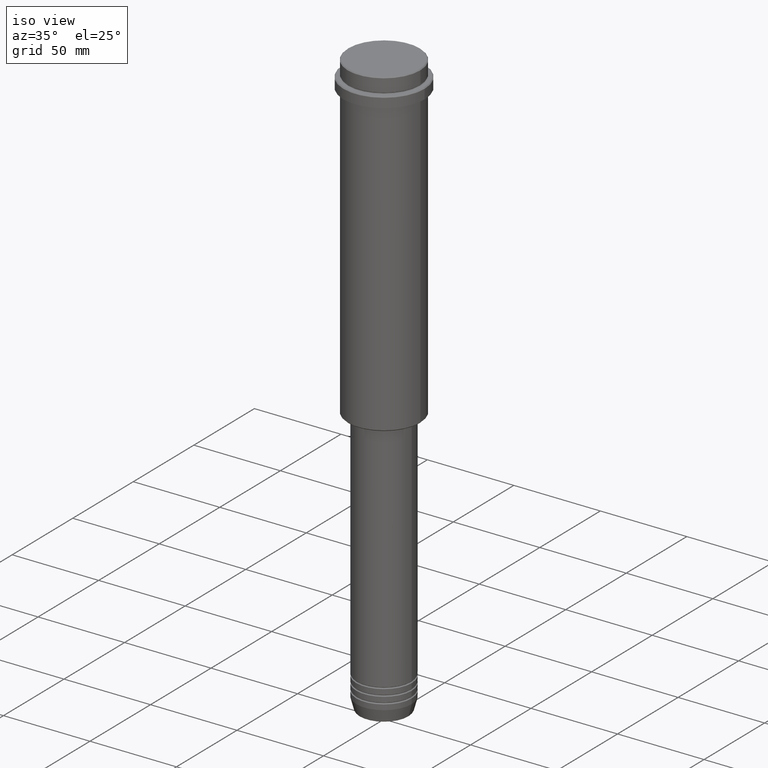
[diagram: clean part render]
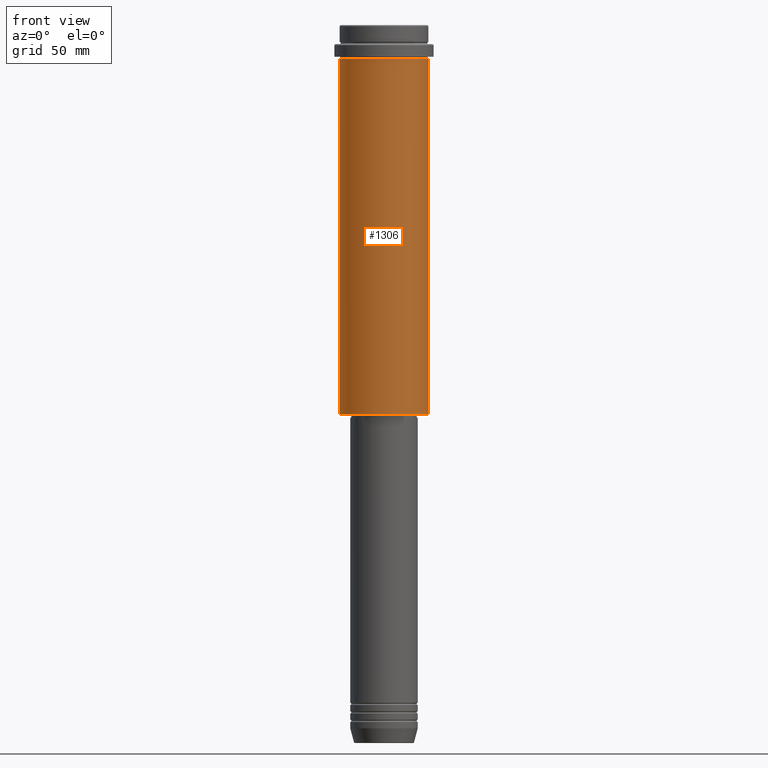
[diagram: tour spotlight — one face highlighted and labeled with its STEP entity id]
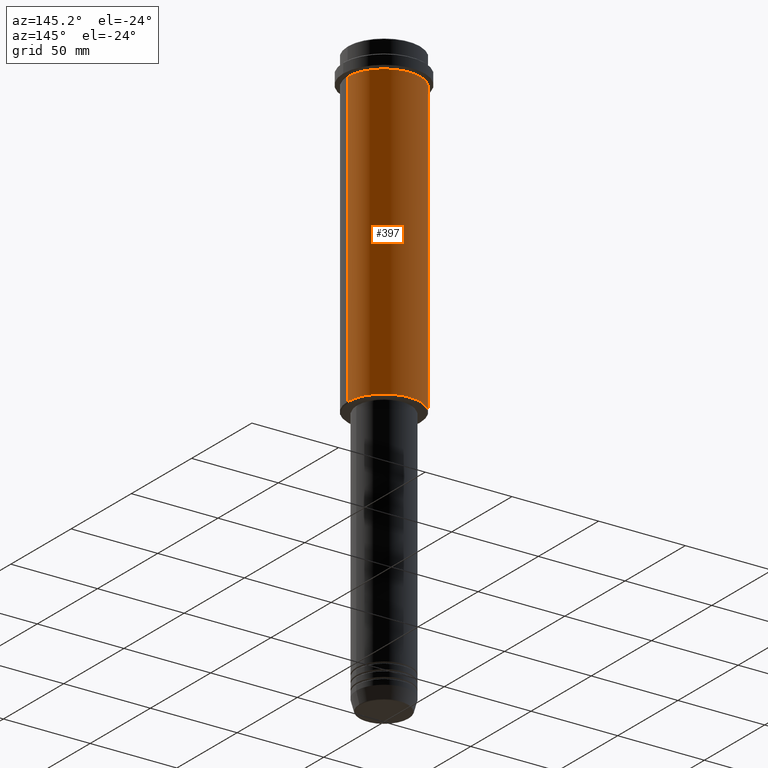
[diagram: tour spotlight — one face highlighted and labeled with its STEP entity id]
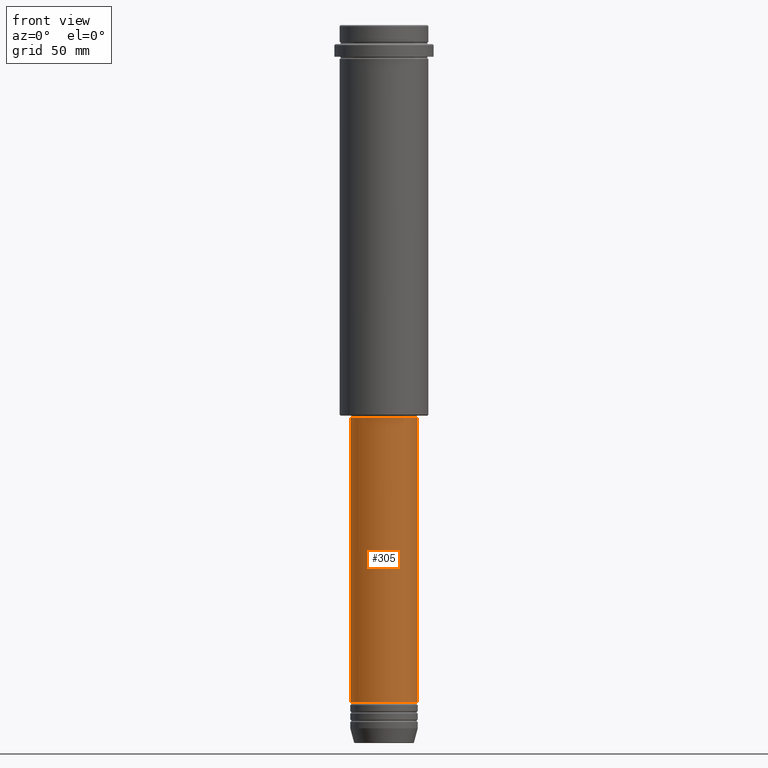
[diagram: tour spotlight — one face highlighted and labeled with its STEP entity id]
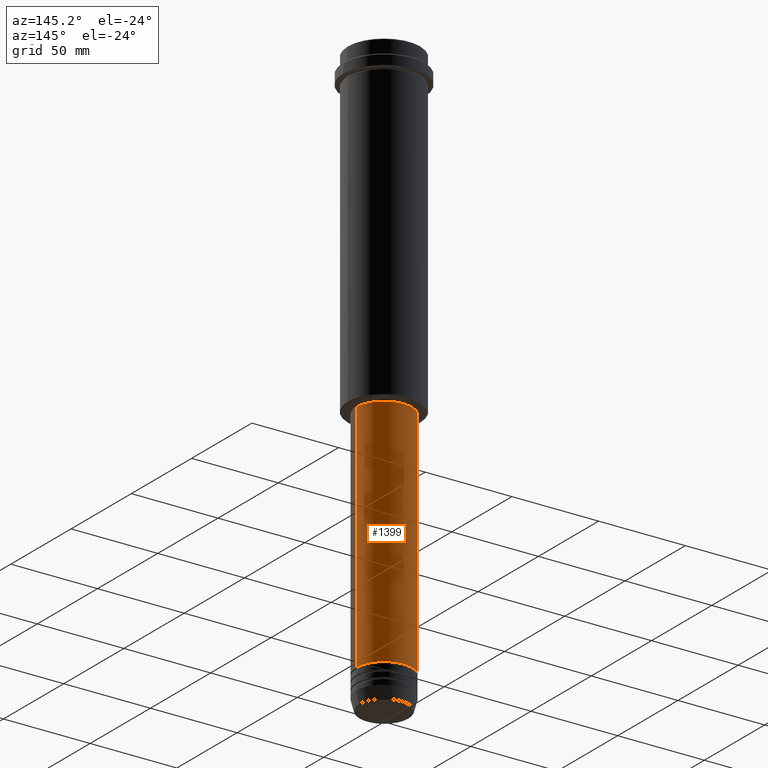
[diagram: tour spotlight — one face highlighted and labeled with its STEP entity id]
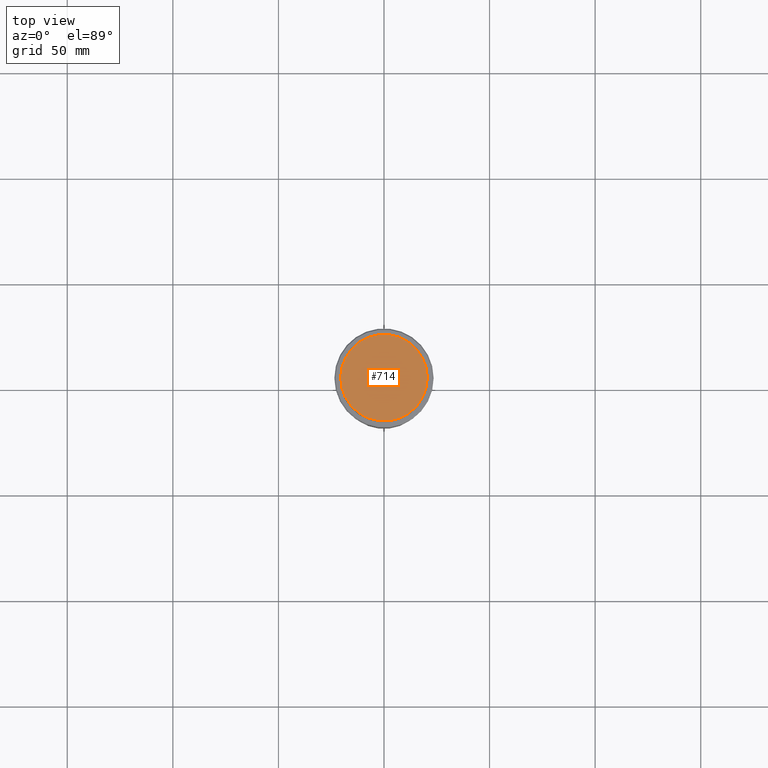
[diagram: tour spotlight — one face highlighted and labeled with its STEP entity id]
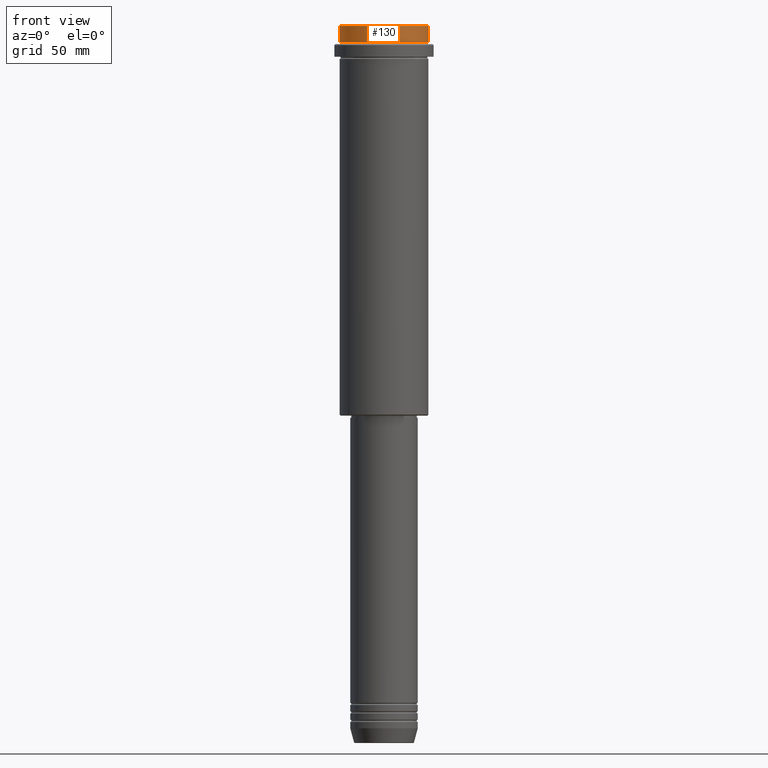
[diagram: tour spotlight — one face highlighted and labeled with its STEP entity id]
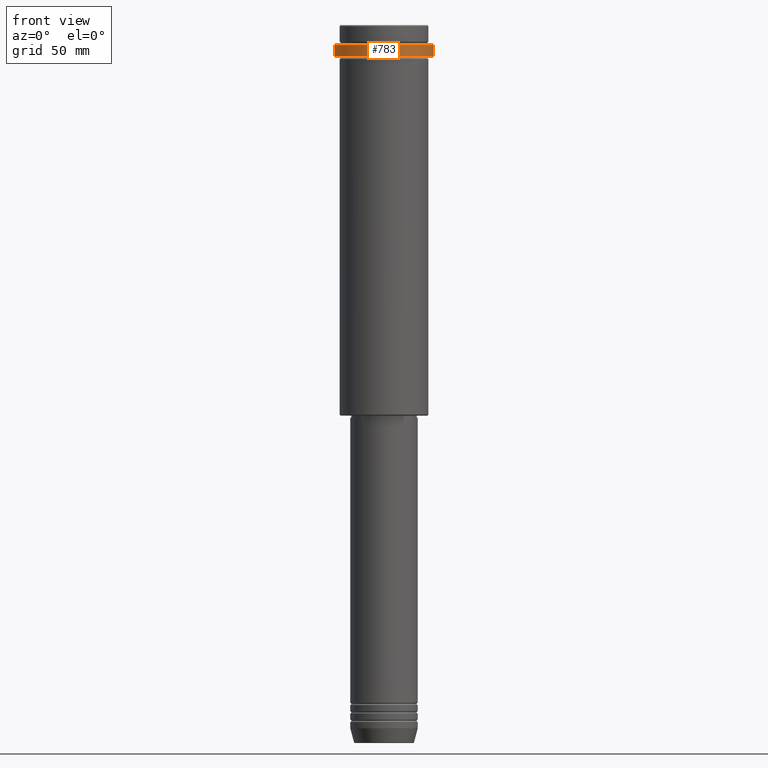
[diagram: tour spotlight — one face highlighted and labeled with its STEP entity id]
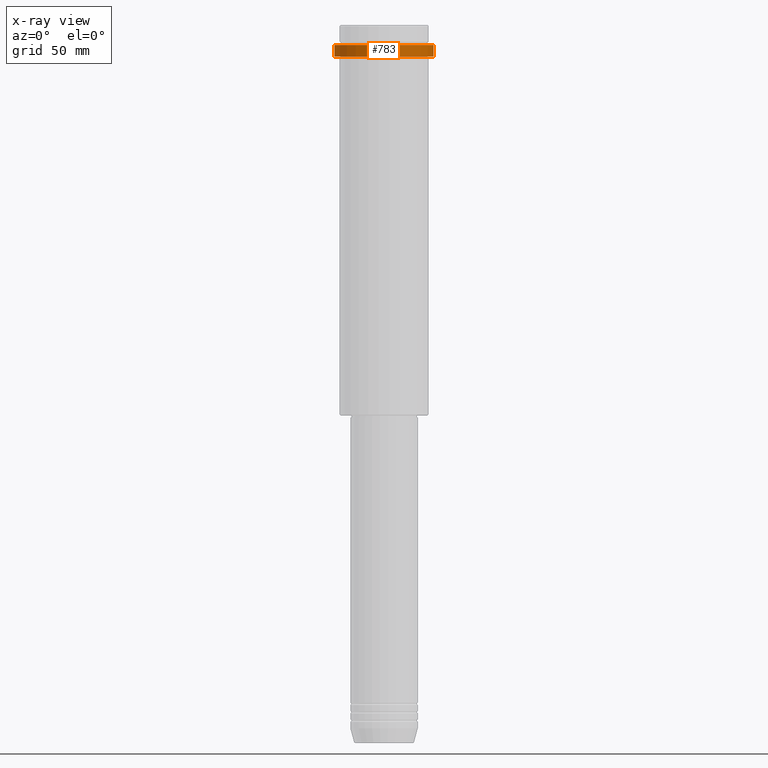
[diagram: x-ray of the same camera — body ghosted, this tour face saturated]
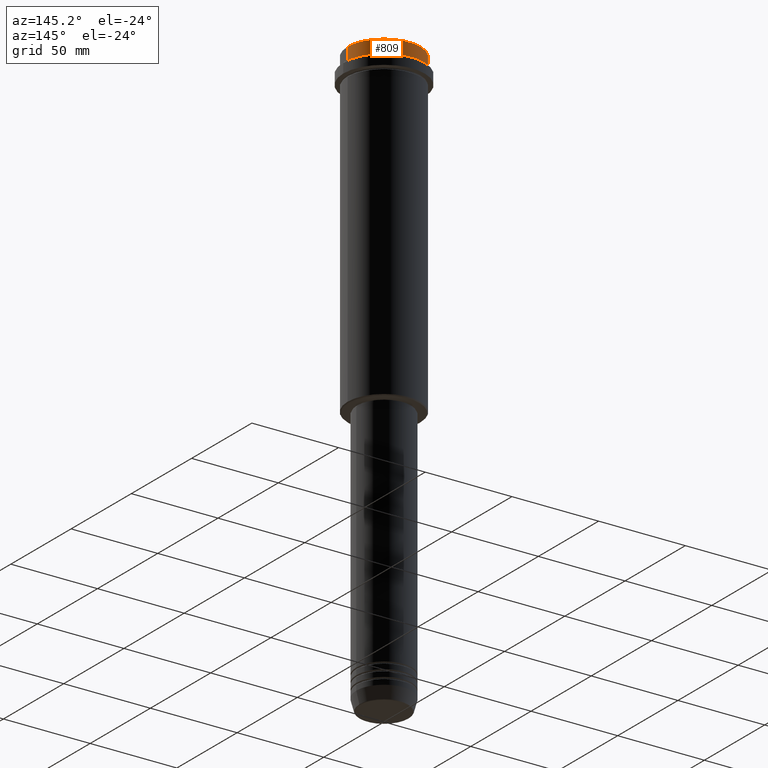
[diagram: tour spotlight — one face highlighted and labeled with its STEP entity id]
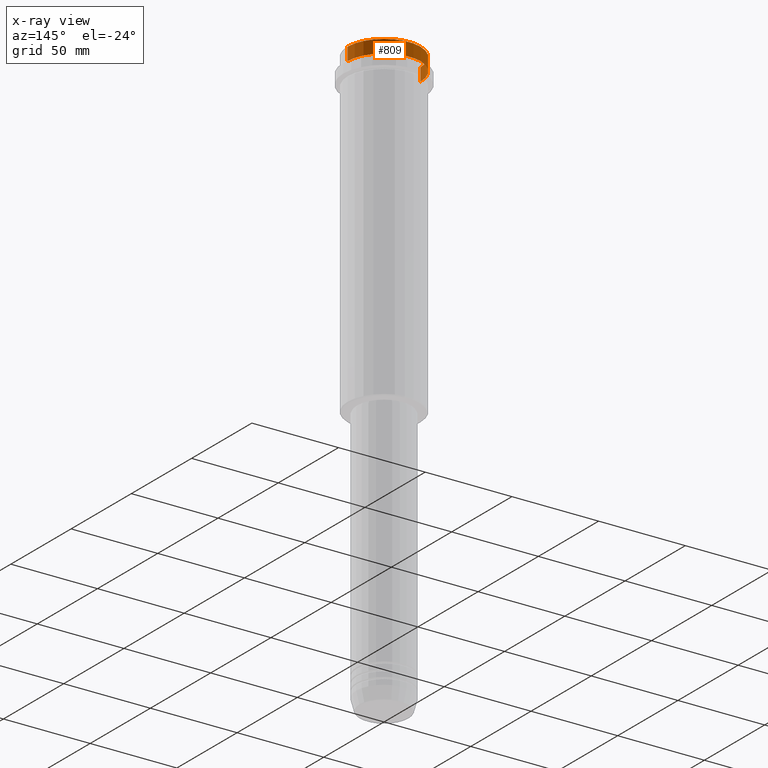
[diagram: x-ray of the same camera — body ghosted, this tour face saturated]
A machine part: a face-by-face anatomy tour. The part has 52 B-rep faces; the first image is the clean iso view, then the 8 largest visible faces are spotlighted one at a time (largest first), each with its STEP entity span.

Face 1 — front view, entity #1306. In plain terms, the highlighted cylindrical surface (partial cylindrical patch) has radius 21 mm, axis along (-0, -0, 1).
Definition (entity closure, byte-faithful):
#24 = FACE_OUTER_BOUND ( 'NONE', #1365, .T. ) ;
#34 = DIRECTION ( 'NONE',  ( 1.000000000000000000, 0.000000000000000000, 0.000000000000000000 ) ) ;
#41 = CARTESIAN_POINT ( 'NONE',  ( 20.99999999999999645, 0.000000000000000000, -16.00000000000000355 ) ) ;
#58 = VERTEX_POINT ( 'NONE', #1004 ) ;
#90 = DIRECTION ( 'NONE',  ( -0.000000000000000000, -0.000000000000000000, 1.000000000000000000 ) ) ;
#102 = CARTESIAN_POINT ( 'NONE',  ( 20.99999999999999645, 0.000000000000000000, 0.000000000000000000 ) ) ;
#106 = CARTESIAN_POINT ( 'NONE',  ( 0.000000000000000000, 0.000000000000000000, -184.5000000000001137 ) ) ;
#204 = DIRECTION ( 'NONE',  ( -0.000000000000000000, -0.000000000000000000, 1.000000000000000000 ) ) ;
#272 = DIRECTION ( 'NONE',  ( -0.000000000000000000, -0.000000000000000000, 1.000000000000000000 ) ) ;
#280 = ORIENTED_EDGE ( 'NONE', *, *, #672, .T. ) ;
#298 = LINE ( 'NONE', #500, #696 ) ;
#370 = VERTEX_POINT ( 'NONE', #1119 ) ;
#500 = CARTESIAN_POINT ( 'NONE',  ( -20.99999999999999645, 2.571758278209441267E-15, 0.000000000000000000 ) ) ;
#508 = EDGE_CURVE ( 'NONE', #58, #914, #298, .T. ) ;
#524 = ORIENTED_EDGE ( 'NONE', *, *, #508, .F. ) ;
#586 = DIRECTION ( 'NONE',  ( -0.000000000000000000, -0.000000000000000000, 1.000000000000000000 ) ) ;
#597 = CYLINDRICAL_SURFACE ( 'NONE', #1228, 20.99999999999999645 ) ;
#672 = EDGE_CURVE ( 'NONE', #370, #1171, #869, .T. ) ;
#676 = CIRCLE ( 'NONE', #1178, 20.99999999999999645 ) ;
#696 = VECTOR ( 'NONE', #272, 1000.000000000000000 ) ;
#708 = EDGE_CURVE ( 'NONE', #58, #370, #676, .T. ) ;
#715 = CARTESIAN_POINT ( 'NONE',  ( -20.99999999999999645, 2.571758278209441267E-15, -16.00000000000000355 ) ) ;
#790 = VECTOR ( 'NONE', #204, 1000.000000000000000 ) ;
#869 = LINE ( 'NONE', #102, #790 ) ;
#888 = AXIS2_PLACEMENT_3D ( 'NONE', #1043, #90, #1175 ) ;
#889 = ORIENTED_EDGE ( 'NONE', *, *, #708, .T. ) ;
#914 = VERTEX_POINT ( 'NONE', #715 ) ;
#953 = EDGE_CURVE ( 'NONE', #914, #1171, #1090, .T. ) ;
#986 = ORIENTED_EDGE ( 'NONE', *, *, #953, .F. ) ;
#1004 = CARTESIAN_POINT ( 'NONE',  ( -20.99999999999999645, 2.571758278209441267E-15, -184.5000000000001137 ) ) ;
#1008 = CARTESIAN_POINT ( 'NONE',  ( 0.000000000000000000, 0.000000000000000000, 0.000000000000000000 ) ) ;
#1043 = CARTESIAN_POINT ( 'NONE',  ( 0.000000000000000000, 0.000000000000000000, -16.00000000000000355 ) ) ;
#1090 = CIRCLE ( 'NONE', #888, 20.99999999999999645 ) ;
#1119 = CARTESIAN_POINT ( 'NONE',  ( 20.99999999999999645, 0.000000000000000000, -184.5000000000001137 ) ) ;
#1171 = VERTEX_POINT ( 'NONE', #41 ) ;
#1175 = DIRECTION ( 'NONE',  ( 1.000000000000000000, 0.000000000000000000, 0.000000000000000000 ) ) ;
#1178 = AXIS2_PLACEMENT_3D ( 'NONE', #106, #1189, #1415 ) ;
#1189 = DIRECTION ( 'NONE',  ( -0.000000000000000000, -0.000000000000000000, 1.000000000000000000 ) ) ;
#1228 = AXIS2_PLACEMENT_3D ( 'NONE', #1008, #586, #34 ) ;
#1306 = ADVANCED_FACE ( 'NONE', ( #24 ), #597, .T. ) ;
#1365 = EDGE_LOOP ( 'NONE', ( #524, #889, #280, #986 ) ) ;
#1415 = DIRECTION ( 'NONE',  ( -1.000000000000000000, 0.000000000000000000, 0.000000000000000000 ) ) ;

Face 2 — auxiliary view, entity #397. In plain terms, the highlighted cylindrical surface (partial cylindrical patch) has radius 21 mm, axis along (-0, -0, 1).
Definition (entity closure, byte-faithful):
#28 = ORIENTED_EDGE ( 'NONE', *, *, #1142, .T. ) ;
#41 = CARTESIAN_POINT ( 'NONE',  ( 20.99999999999999645, 0.000000000000000000, -16.00000000000000355 ) ) ;
#58 = VERTEX_POINT ( 'NONE', #1004 ) ;
#102 = CARTESIAN_POINT ( 'NONE',  ( 20.99999999999999645, 0.000000000000000000, 0.000000000000000000 ) ) ;
#108 = EDGE_LOOP ( 'NONE', ( #28, #681, #601, #358 ) ) ;
#177 = DIRECTION ( 'NONE',  ( -0.000000000000000000, -0.000000000000000000, 1.000000000000000000 ) ) ;
#204 = DIRECTION ( 'NONE',  ( -0.000000000000000000, -0.000000000000000000, 1.000000000000000000 ) ) ;
#272 = DIRECTION ( 'NONE',  ( -0.000000000000000000, -0.000000000000000000, 1.000000000000000000 ) ) ;
#298 = LINE ( 'NONE', #500, #696 ) ;
#358 = ORIENTED_EDGE ( 'NONE', *, *, #672, .F. ) ;
#370 = VERTEX_POINT ( 'NONE', #1119 ) ;
#375 = DIRECTION ( 'NONE',  ( 1.000000000000000000, 0.000000000000000000, 0.000000000000000000 ) ) ;
#397 = ADVANCED_FACE ( 'NONE', ( #490 ), #484, .T. ) ;
#411 = EDGE_CURVE ( 'NONE', #1171, #914, #1159, .T. ) ;
#454 = DIRECTION ( 'NONE',  ( -1.000000000000000000, 0.000000000000000000, 0.000000000000000000 ) ) ;
#484 = CYLINDRICAL_SURFACE ( 'NONE', #1223, 20.99999999999999645 ) ;
#490 = FACE_OUTER_BOUND ( 'NONE', #108, .T. ) ;
#500 = CARTESIAN_POINT ( 'NONE',  ( -20.99999999999999645, 2.571758278209441267E-15, 0.000000000000000000 ) ) ;
#508 = EDGE_CURVE ( 'NONE', #58, #914, #298, .T. ) ;
#573 = AXIS2_PLACEMENT_3D ( 'NONE', #1209, #962, #454 ) ;
#601 = ORIENTED_EDGE ( 'NONE', *, *, #411, .F. ) ;
#672 = EDGE_CURVE ( 'NONE', #370, #1171, #869, .T. ) ;
#681 = ORIENTED_EDGE ( 'NONE', *, *, #508, .T. ) ;
#696 = VECTOR ( 'NONE', #272, 1000.000000000000000 ) ;
#715 = CARTESIAN_POINT ( 'NONE',  ( -20.99999999999999645, 2.571758278209441267E-15, -16.00000000000000355 ) ) ;
#717 = AXIS2_PLACEMENT_3D ( 'NONE', #1106, #1019, #375 ) ;
#790 = VECTOR ( 'NONE', #204, 1000.000000000000000 ) ;
#851 = DIRECTION ( 'NONE',  ( 1.000000000000000000, 0.000000000000000000, 0.000000000000000000 ) ) ;
#869 = LINE ( 'NONE', #102, #790 ) ;
#914 = VERTEX_POINT ( 'NONE', #715 ) ;
#962 = DIRECTION ( 'NONE',  ( -0.000000000000000000, -0.000000000000000000, 1.000000000000000000 ) ) ;
#1004 = CARTESIAN_POINT ( 'NONE',  ( -20.99999999999999645, 2.571758278209441267E-15, -184.5000000000001137 ) ) ;
#1019 = DIRECTION ( 'NONE',  ( -0.000000000000000000, -0.000000000000000000, 1.000000000000000000 ) ) ;
#1106 = CARTESIAN_POINT ( 'NONE',  ( 0.000000000000000000, 0.000000000000000000, -16.00000000000000355 ) ) ;
#1119 = CARTESIAN_POINT ( 'NONE',  ( 20.99999999999999645, 0.000000000000000000, -184.5000000000001137 ) ) ;
#1142 = EDGE_CURVE ( 'NONE', #370, #58, #1181, .T. ) ;
#1159 = CIRCLE ( 'NONE', #717, 20.99999999999999645 ) ;
#1171 = VERTEX_POINT ( 'NONE', #41 ) ;
#1181 = CIRCLE ( 'NONE', #573, 20.99999999999999645 ) ;
#1209 = CARTESIAN_POINT ( 'NONE',  ( 0.000000000000000000, 0.000000000000000000, -184.5000000000001137 ) ) ;
#1223 = AXIS2_PLACEMENT_3D ( 'NONE', #1252, #177, #851 ) ;
#1252 = CARTESIAN_POINT ( 'NONE',  ( 0.000000000000000000, 0.000000000000000000, 0.000000000000000000 ) ) ;

Face 3 — front view, entity #305. In plain terms, the highlighted cylindrical surface (edge-blend (fillet) strip) has radius 16 mm, axis along (-0, -0, 1).
Definition (entity closure, byte-faithful):
#2 = CARTESIAN_POINT ( 'NONE',  ( 16.00000000000000000, 0.000000000000000000, -320.9999999999998863 ) ) ;
#12 = DIRECTION ( 'NONE',  ( 1.000000000000000000, 0.000000000000000000, 0.000000000000000000 ) ) ;
#20 = EDGE_CURVE ( 'NONE', #23, #1063, #537, .T. ) ;
#23 = VERTEX_POINT ( 'NONE', #2 ) ;
#43 = CARTESIAN_POINT ( 'NONE',  ( -16.00000000000000000, 1.959434878635765131E-15, -320.9999999999998863 ) ) ;
#79 = EDGE_CURVE ( 'NONE', #518, #1063, #472, .T. ) ;
#141 = FACE_OUTER_BOUND ( 'NONE', #374, .T. ) ;
#212 = CARTESIAN_POINT ( 'NONE',  ( 16.00000000000000355, 0.000000000000000000, -185.9999999999999432 ) ) ;
#234 = DIRECTION ( 'NONE',  ( -0.000000000000000000, -0.000000000000000000, 1.000000000000000000 ) ) ;
#247 = AXIS2_PLACEMENT_3D ( 'NONE', #465, #1343, #367 ) ;
#305 = ADVANCED_FACE ( 'NONE', ( #141 ), #669, .T. ) ;
#367 = DIRECTION ( 'NONE',  ( 1.000000000000000000, 0.000000000000000000, 0.000000000000000000 ) ) ;
#374 = EDGE_LOOP ( 'NONE', ( #1390, #595, #736, #383 ) ) ;
#383 = ORIENTED_EDGE ( 'NONE', *, *, #79, .F. ) ;
#461 = DIRECTION ( 'NONE',  ( 1.000000000000000000, 0.000000000000000000, 0.000000000000000000 ) ) ;
#465 = CARTESIAN_POINT ( 'NONE',  ( 0.000000000000000000, 0.000000000000000000, 0.000000000000000000 ) ) ;
#472 = CIRCLE ( 'NONE', #1135, 16.00000000000000355 ) ;
#504 = CIRCLE ( 'NONE', #747, 16.00000000000000000 ) ;
#518 = VERTEX_POINT ( 'NONE', #1149 ) ;
#521 = DIRECTION ( 'NONE',  ( -0.000000000000000000, -0.000000000000000000, 1.000000000000000000 ) ) ;
#537 = LINE ( 'NONE', #977, #587 ) ;
#587 = VECTOR ( 'NONE', #646, 1000.000000000000000 ) ;
#595 = ORIENTED_EDGE ( 'NONE', *, *, #1188, .T. ) ;
#613 = CARTESIAN_POINT ( 'NONE',  ( 0.000000000000000000, 0.000000000000000000, -185.9999999999999432 ) ) ;
#646 = DIRECTION ( 'NONE',  ( -0.000000000000000000, -0.000000000000000000, 1.000000000000000000 ) ) ;
#669 = CYLINDRICAL_SURFACE ( 'NONE', #247, 16.00000000000000000 ) ;
#736 = ORIENTED_EDGE ( 'NONE', *, *, #20, .T. ) ;
#747 = AXIS2_PLACEMENT_3D ( 'NONE', #1219, #1358, #461 ) ;
#765 = LINE ( 'NONE', #1140, #792 ) ;
#792 = VECTOR ( 'NONE', #234, 1000.000000000000000 ) ;
#817 = VERTEX_POINT ( 'NONE', #43 ) ;
#867 = EDGE_CURVE ( 'NONE', #817, #518, #765, .T. ) ;
#977 = CARTESIAN_POINT ( 'NONE',  ( 16.00000000000000000, 0.000000000000000000, 0.000000000000000000 ) ) ;
#1063 = VERTEX_POINT ( 'NONE', #212 ) ;
#1135 = AXIS2_PLACEMENT_3D ( 'NONE', #613, #521, #12 ) ;
#1140 = CARTESIAN_POINT ( 'NONE',  ( -16.00000000000000000, 1.959434878635765131E-15, 0.000000000000000000 ) ) ;
#1149 = CARTESIAN_POINT ( 'NONE',  ( -16.00000000000000355, 1.959434878635765526E-15, -185.9999999999999432 ) ) ;
#1188 = EDGE_CURVE ( 'NONE', #817, #23, #504, .T. ) ;
#1219 = CARTESIAN_POINT ( 'NONE',  ( 0.000000000000000000, 0.000000000000000000, -320.9999999999998863 ) ) ;
#1343 = DIRECTION ( 'NONE',  ( -0.000000000000000000, -0.000000000000000000, 1.000000000000000000 ) ) ;
#1358 = DIRECTION ( 'NONE',  ( -0.000000000000000000, -0.000000000000000000, 1.000000000000000000 ) ) ;
#1390 = ORIENTED_EDGE ( 'NONE', *, *, #867, .F. ) ;

Face 4 — auxiliary view, entity #1399. In plain terms, the highlighted cylindrical surface (edge-blend (fillet) strip) has radius 16 mm, axis along (-0, -0, 1).
Definition (entity closure, byte-faithful):
#2 = CARTESIAN_POINT ( 'NONE',  ( 16.00000000000000000, 0.000000000000000000, -320.9999999999998863 ) ) ;
#9 = EDGE_LOOP ( 'NONE', ( #1261, #35, #880, #1357 ) ) ;
#20 = EDGE_CURVE ( 'NONE', #23, #1063, #537, .T. ) ;
#23 = VERTEX_POINT ( 'NONE', #2 ) ;
#33 = EDGE_CURVE ( 'NONE', #1063, #518, #858, .T. ) ;
#35 = ORIENTED_EDGE ( 'NONE', *, *, #867, .T. ) ;
#43 = CARTESIAN_POINT ( 'NONE',  ( -16.00000000000000000, 1.959434878635765131E-15, -320.9999999999998863 ) ) ;
#185 = DIRECTION ( 'NONE',  ( -0.000000000000000000, -0.000000000000000000, 1.000000000000000000 ) ) ;
#194 = AXIS2_PLACEMENT_3D ( 'NONE', #703, #392, #519 ) ;
#212 = CARTESIAN_POINT ( 'NONE',  ( 16.00000000000000355, 0.000000000000000000, -185.9999999999999432 ) ) ;
#234 = DIRECTION ( 'NONE',  ( -0.000000000000000000, -0.000000000000000000, 1.000000000000000000 ) ) ;
#291 = EDGE_CURVE ( 'NONE', #23, #817, #1293, .T. ) ;
#392 = DIRECTION ( 'NONE',  ( -0.000000000000000000, -0.000000000000000000, 1.000000000000000000 ) ) ;
#518 = VERTEX_POINT ( 'NONE', #1149 ) ;
#519 = DIRECTION ( 'NONE',  ( 1.000000000000000000, 0.000000000000000000, 0.000000000000000000 ) ) ;
#537 = LINE ( 'NONE', #977, #587 ) ;
#587 = VECTOR ( 'NONE', #646, 1000.000000000000000 ) ;
#646 = DIRECTION ( 'NONE',  ( -0.000000000000000000, -0.000000000000000000, 1.000000000000000000 ) ) ;
#703 = CARTESIAN_POINT ( 'NONE',  ( 0.000000000000000000, 0.000000000000000000, 0.000000000000000000 ) ) ;
#742 = AXIS2_PLACEMENT_3D ( 'NONE', #1362, #1231, #908 ) ;
#765 = LINE ( 'NONE', #1140, #792 ) ;
#792 = VECTOR ( 'NONE', #234, 1000.000000000000000 ) ;
#817 = VERTEX_POINT ( 'NONE', #43 ) ;
#818 = DIRECTION ( 'NONE',  ( 1.000000000000000000, 0.000000000000000000, 0.000000000000000000 ) ) ;
#858 = CIRCLE ( 'NONE', #947, 16.00000000000000355 ) ;
#867 = EDGE_CURVE ( 'NONE', #817, #518, #765, .T. ) ;
#880 = ORIENTED_EDGE ( 'NONE', *, *, #33, .F. ) ;
#908 = DIRECTION ( 'NONE',  ( 1.000000000000000000, 0.000000000000000000, 0.000000000000000000 ) ) ;
#947 = AXIS2_PLACEMENT_3D ( 'NONE', #1075, #185, #818 ) ;
#977 = CARTESIAN_POINT ( 'NONE',  ( 16.00000000000000000, 0.000000000000000000, 0.000000000000000000 ) ) ;
#1061 = FACE_OUTER_BOUND ( 'NONE', #9, .T. ) ;
#1063 = VERTEX_POINT ( 'NONE', #212 ) ;
#1075 = CARTESIAN_POINT ( 'NONE',  ( 0.000000000000000000, 0.000000000000000000, -185.9999999999999432 ) ) ;
#1140 = CARTESIAN_POINT ( 'NONE',  ( -16.00000000000000000, 1.959434878635765131E-15, 0.000000000000000000 ) ) ;
#1149 = CARTESIAN_POINT ( 'NONE',  ( -16.00000000000000355, 1.959434878635765526E-15, -185.9999999999999432 ) ) ;
#1231 = DIRECTION ( 'NONE',  ( -0.000000000000000000, -0.000000000000000000, 1.000000000000000000 ) ) ;
#1261 = ORIENTED_EDGE ( 'NONE', *, *, #291, .T. ) ;
#1277 = CYLINDRICAL_SURFACE ( 'NONE', #194, 16.00000000000000000 ) ;
#1293 = CIRCLE ( 'NONE', #742, 16.00000000000000000 ) ;
#1357 = ORIENTED_EDGE ( 'NONE', *, *, #20, .F. ) ;
#1362 = CARTESIAN_POINT ( 'NONE',  ( 0.000000000000000000, 0.000000000000000000, -320.9999999999998863 ) ) ;
#1399 = ADVANCED_FACE ( 'NONE', ( #1061 ), #1277, .T. ) ;

Face 5 — top view, entity #714. In plain terms, the highlighted planar face has unit normal (0, -0, 1).
Definition (entity closure, byte-faithful):
#92 = DIRECTION ( 'NONE',  ( 0.000000000000000000, -0.000000000000000000, 1.000000000000000000 ) ) ;
#184 = ORIENTED_EDGE ( 'NONE', *, *, #535, .T. ) ;
#261 = DIRECTION ( 'NONE',  ( 1.000000000000000000, 0.000000000000000000, 0.000000000000000000 ) ) ;
#273 = AXIS2_PLACEMENT_3D ( 'NONE', #486, #1387, #1035 ) ;
#376 = DIRECTION ( 'NONE',  ( 1.000000000000000000, 0.000000000000000000, 0.000000000000000000 ) ) ;
#486 = CARTESIAN_POINT ( 'NONE',  ( 0.000000000000000000, 0.000000000000000000, 0.000000000000000000 ) ) ;
#535 = EDGE_CURVE ( 'NONE', #1013, #1108, #1246, .T. ) ;
#714 = ADVANCED_FACE ( 'NONE', ( #982 ), #728, .T. ) ;
#728 = PLANE ( 'NONE',  #1345 ) ;
#946 = CARTESIAN_POINT ( 'NONE',  ( 20.49999999999996447, 2.541142108230755507E-15, 0.000000000000000000 ) ) ;
#979 = CARTESIAN_POINT ( 'NONE',  ( -20.49999999999996447, 0.000000000000000000, 0.000000000000000000 ) ) ;
#982 = FACE_OUTER_BOUND ( 'NONE', #1240, .T. ) ;
#1013 = VERTEX_POINT ( 'NONE', #946 ) ;
#1035 = DIRECTION ( 'NONE',  ( 1.000000000000000000, 0.000000000000000000, 0.000000000000000000 ) ) ;
#1071 = CIRCLE ( 'NONE', #1162, 20.49999999999996447 ) ;
#1108 = VERTEX_POINT ( 'NONE', #979 ) ;
#1162 = AXIS2_PLACEMENT_3D ( 'NONE', #1336, #1226, #376 ) ;
#1169 = CARTESIAN_POINT ( 'NONE',  ( 0.000000000000000000, 0.000000000000000000, 0.000000000000000000 ) ) ;
#1211 = EDGE_CURVE ( 'NONE', #1108, #1013, #1071, .T. ) ;
#1226 = DIRECTION ( 'NONE',  ( -0.000000000000000000, -0.000000000000000000, 1.000000000000000000 ) ) ;
#1240 = EDGE_LOOP ( 'NONE', ( #1405, #184 ) ) ;
#1246 = CIRCLE ( 'NONE', #273, 20.49999999999996447 ) ;
#1336 = CARTESIAN_POINT ( 'NONE',  ( 0.000000000000000000, 0.000000000000000000, 0.000000000000000000 ) ) ;
#1345 = AXIS2_PLACEMENT_3D ( 'NONE', #1169, #92, #261 ) ;
#1387 = DIRECTION ( 'NONE',  ( -0.000000000000000000, -0.000000000000000000, 1.000000000000000000 ) ) ;
#1405 = ORIENTED_EDGE ( 'NONE', *, *, #1211, .T. ) ;

Face 6 — front view, entity #130. In plain terms, the highlighted cylindrical surface (partial cylindrical patch) has radius 21 mm, axis along (-0, -0, 1).
Definition (entity closure, byte-faithful):
#4 = LINE ( 'NONE', #1328, #309 ) ;
#47 = DIRECTION ( 'NONE',  ( 1.000000000000000000, 0.000000000000000000, 0.000000000000000000 ) ) ;
#57 = CYLINDRICAL_SURFACE ( 'NONE', #1338, 20.99999999999999645 ) ;
#60 = ORIENTED_EDGE ( 'NONE', *, *, #181, .F. ) ;
#68 = VERTEX_POINT ( 'NONE', #690 ) ;
#95 = DIRECTION ( 'NONE',  ( -0.000000000000000000, -0.000000000000000000, 1.000000000000000000 ) ) ;
#130 = ADVANCED_FACE ( 'NONE', ( #152 ), #57, .T. ) ;
#152 = FACE_OUTER_BOUND ( 'NONE', #830, .T. ) ;
#181 = EDGE_CURVE ( 'NONE', #68, #1212, #645, .T. ) ;
#187 = CARTESIAN_POINT ( 'NONE',  ( 0.000000000000000000, 0.000000000000000000, 0.000000000000000000 ) ) ;
#266 = CARTESIAN_POINT ( 'NONE',  ( -20.99999999999999645, 2.571758278209441267E-15, -0.5000000000000628386 ) ) ;
#275 = AXIS2_PLACEMENT_3D ( 'NONE', #1102, #665, #330 ) ;
#286 = ORIENTED_EDGE ( 'NONE', *, *, #887, .T. ) ;
#309 = VECTOR ( 'NONE', #1197, 1000.000000000000000 ) ;
#317 = CARTESIAN_POINT ( 'NONE',  ( 0.000000000000000000, 0.000000000000000000, -7.999999999999998224 ) ) ;
#330 = DIRECTION ( 'NONE',  ( 1.000000000000000000, 0.000000000000000000, 0.000000000000000000 ) ) ;
#331 = CARTESIAN_POINT ( 'NONE',  ( 20.99999999999999645, 0.000000000000000000, -0.5000000000000628386 ) ) ;
#391 = AXIS2_PLACEMENT_3D ( 'NONE', #317, #95, #401 ) ;
#401 = DIRECTION ( 'NONE',  ( 1.000000000000000000, 0.000000000000000000, 0.000000000000000000 ) ) ;
#645 = LINE ( 'NONE', #965, #993 ) ;
#665 = DIRECTION ( 'NONE',  ( 0.000000000000000000, 0.000000000000000000, -1.000000000000000000 ) ) ;
#677 = CIRCLE ( 'NONE', #275, 20.99999999999999645 ) ;
#690 = CARTESIAN_POINT ( 'NONE',  ( -20.99999999999999645, 2.571758278209441267E-15, -7.999999999999998224 ) ) ;
#692 = VERTEX_POINT ( 'NONE', #331 ) ;
#745 = VERTEX_POINT ( 'NONE', #789 ) ;
#789 = CARTESIAN_POINT ( 'NONE',  ( 20.99999999999999645, 0.000000000000000000, -7.999999999999998224 ) ) ;
#826 = DIRECTION ( 'NONE',  ( -0.000000000000000000, -0.000000000000000000, 1.000000000000000000 ) ) ;
#830 = EDGE_LOOP ( 'NONE', ( #60, #286, #1360, #920 ) ) ;
#887 = EDGE_CURVE ( 'NONE', #68, #745, #1092, .T. ) ;
#920 = ORIENTED_EDGE ( 'NONE', *, *, #1059, .T. ) ;
#965 = CARTESIAN_POINT ( 'NONE',  ( -20.99999999999999645, 2.571758278209441267E-15, 0.000000000000000000 ) ) ;
#993 = VECTOR ( 'NONE', #826, 1000.000000000000000 ) ;
#1036 = EDGE_CURVE ( 'NONE', #745, #692, #4, .T. ) ;
#1059 = EDGE_CURVE ( 'NONE', #692, #1212, #677, .T. ) ;
#1092 = CIRCLE ( 'NONE', #391, 20.99999999999999645 ) ;
#1102 = CARTESIAN_POINT ( 'NONE',  ( 0.000000000000000000, 0.000000000000000000, -0.5000000000000628386 ) ) ;
#1197 = DIRECTION ( 'NONE',  ( -0.000000000000000000, -0.000000000000000000, 1.000000000000000000 ) ) ;
#1212 = VERTEX_POINT ( 'NONE', #266 ) ;
#1328 = CARTESIAN_POINT ( 'NONE',  ( 20.99999999999999645, 0.000000000000000000, 0.000000000000000000 ) ) ;
#1338 = AXIS2_PLACEMENT_3D ( 'NONE', #187, #1340, #47 ) ;
#1340 = DIRECTION ( 'NONE',  ( -0.000000000000000000, -0.000000000000000000, 1.000000000000000000 ) ) ;
#1360 = ORIENTED_EDGE ( 'NONE', *, *, #1036, .T. ) ;

Face 7 — front view, entity #783. An x-ray twin of the same camera follows (body ghosted, this face saturated) — the face is partly hidden behind the body. In plain terms, the highlighted cylindrical surface (partial cylindrical patch) has radius 23.5 mm, axis along (-0, -0, 1).
Definition (entity closure, byte-faithful):
#7 = DIRECTION ( 'NONE',  ( 1.000000000000000000, 0.000000000000000000, 0.000000000000000000 ) ) ;
#147 = DIRECTION ( 'NONE',  ( -0.000000000000000000, -0.000000000000000000, 1.000000000000000000 ) ) ;
#154 = CARTESIAN_POINT ( 'NONE',  ( -23.50000000000000000, 2.877919977996280320E-15, -9.499999999999973355 ) ) ;
#217 = EDGE_LOOP ( 'NONE', ( #1101, #242, #1006, #556 ) ) ;
#242 = ORIENTED_EDGE ( 'NONE', *, *, #1413, .T. ) ;
#303 = DIRECTION ( 'NONE',  ( 1.000000000000000000, 0.000000000000000000, 0.000000000000000000 ) ) ;
#384 = FACE_OUTER_BOUND ( 'NONE', #217, .T. ) ;
#450 = VERTEX_POINT ( 'NONE', #1039 ) ;
#451 = CYLINDRICAL_SURFACE ( 'NONE', #770, 23.50000000000000000 ) ;
#480 = CIRCLE ( 'NONE', #1417, 23.50000000000000355 ) ;
#556 = ORIENTED_EDGE ( 'NONE', *, *, #1222, .T. ) ;
#559 = DIRECTION ( 'NONE',  ( -0.000000000000000000, -0.000000000000000000, 1.000000000000000000 ) ) ;
#563 = VERTEX_POINT ( 'NONE', #713 ) ;
#578 = CARTESIAN_POINT ( 'NONE',  ( 0.000000000000000000, 0.000000000000000000, -9.499999999999973355 ) ) ;
#582 = DIRECTION ( 'NONE',  ( 0.000000000000000000, 0.000000000000000000, -1.000000000000000000 ) ) ;
#620 = AXIS2_PLACEMENT_3D ( 'NONE', #578, #582, #1012 ) ;
#631 = DIRECTION ( 'NONE',  ( -0.000000000000000000, -0.000000000000000000, 1.000000000000000000 ) ) ;
#641 = VECTOR ( 'NONE', #147, 1000.000000000000000 ) ;
#713 = CARTESIAN_POINT ( 'NONE',  ( 23.50000000000000000, 0.000000000000000000, -9.499999999999973355 ) ) ;
#723 = CIRCLE ( 'NONE', #620, 23.50000000000000000 ) ;
#729 = CARTESIAN_POINT ( 'NONE',  ( -23.50000000000000000, 2.877919977996280320E-15, 0.000000000000000000 ) ) ;
#770 = AXIS2_PLACEMENT_3D ( 'NONE', #1248, #559, #7 ) ;
#783 = ADVANCED_FACE ( 'NONE', ( #384 ), #451, .T. ) ;
#840 = LINE ( 'NONE', #729, #1094 ) ;
#892 = CARTESIAN_POINT ( 'NONE',  ( 23.50000000000000000, 0.000000000000000000, 0.000000000000000000 ) ) ;
#958 = VERTEX_POINT ( 'NONE', #1173 ) ;
#1006 = ORIENTED_EDGE ( 'NONE', *, *, #1220, .T. ) ;
#1012 = DIRECTION ( 'NONE',  ( 1.000000000000000000, 0.000000000000000000, 0.000000000000000000 ) ) ;
#1039 = CARTESIAN_POINT ( 'NONE',  ( 23.50000000000000355, 0.000000000000000000, -15.00000000000000178 ) ) ;
#1050 = DIRECTION ( 'NONE',  ( -0.000000000000000000, -0.000000000000000000, 1.000000000000000000 ) ) ;
#1094 = VECTOR ( 'NONE', #1050, 1000.000000000000000 ) ;
#1101 = ORIENTED_EDGE ( 'NONE', *, *, #1380, .F. ) ;
#1121 = LINE ( 'NONE', #892, #641 ) ;
#1170 = CARTESIAN_POINT ( 'NONE',  ( 0.000000000000000000, 0.000000000000000000, -15.00000000000000178 ) ) ;
#1173 = CARTESIAN_POINT ( 'NONE',  ( -23.50000000000000711, 2.877919977996281109E-15, -15.00000000000000178 ) ) ;
#1220 = EDGE_CURVE ( 'NONE', #450, #563, #1121, .T. ) ;
#1222 = EDGE_CURVE ( 'NONE', #563, #1304, #723, .T. ) ;
#1248 = CARTESIAN_POINT ( 'NONE',  ( 0.000000000000000000, 0.000000000000000000, 0.000000000000000000 ) ) ;
#1304 = VERTEX_POINT ( 'NONE', #154 ) ;
#1380 = EDGE_CURVE ( 'NONE', #958, #1304, #840, .T. ) ;
#1413 = EDGE_CURVE ( 'NONE', #958, #450, #480, .T. ) ;
#1417 = AXIS2_PLACEMENT_3D ( 'NONE', #1170, #631, #303 ) ;

Face 8 — auxiliary view, entity #809. An x-ray twin of the same camera follows (body ghosted, this face saturated) — the face is partly hidden behind the body. In plain terms, the highlighted cylindrical surface (partial cylindrical patch) has radius 21 mm, axis along (-0, -0, 1).
Definition (entity closure, byte-faithful):
#4 = LINE ( 'NONE', #1328, #309 ) ;
#68 = VERTEX_POINT ( 'NONE', #690 ) ;
#80 = AXIS2_PLACEMENT_3D ( 'NONE', #371, #335, #796 ) ;
#82 = ORIENTED_EDGE ( 'NONE', *, *, #850, .T. ) ;
#180 = ORIENTED_EDGE ( 'NONE', *, *, #1036, .F. ) ;
#181 = EDGE_CURVE ( 'NONE', #68, #1212, #645, .T. ) ;
#266 = CARTESIAN_POINT ( 'NONE',  ( -20.99999999999999645, 2.571758278209441267E-15, -0.5000000000000628386 ) ) ;
#309 = VECTOR ( 'NONE', #1197, 1000.000000000000000 ) ;
#331 = CARTESIAN_POINT ( 'NONE',  ( 20.99999999999999645, 0.000000000000000000, -0.5000000000000628386 ) ) ;
#335 = DIRECTION ( 'NONE',  ( -0.000000000000000000, -0.000000000000000000, 1.000000000000000000 ) ) ;
#356 = ORIENTED_EDGE ( 'NONE', *, *, #181, .T. ) ;
#371 = CARTESIAN_POINT ( 'NONE',  ( 0.000000000000000000, 0.000000000000000000, -7.999999999999998224 ) ) ;
#377 = FACE_OUTER_BOUND ( 'NONE', #957, .T. ) ;
#645 = LINE ( 'NONE', #965, #993 ) ;
#656 = AXIS2_PLACEMENT_3D ( 'NONE', #1088, #1274, #1076 ) ;
#660 = EDGE_CURVE ( 'NONE', #1212, #692, #1225, .T. ) ;
#682 = CYLINDRICAL_SURFACE ( 'NONE', #1368, 20.99999999999999645 ) ;
#690 = CARTESIAN_POINT ( 'NONE',  ( -20.99999999999999645, 2.571758278209441267E-15, -7.999999999999998224 ) ) ;
#692 = VERTEX_POINT ( 'NONE', #331 ) ;
#705 = CARTESIAN_POINT ( 'NONE',  ( 0.000000000000000000, 0.000000000000000000, 0.000000000000000000 ) ) ;
#745 = VERTEX_POINT ( 'NONE', #789 ) ;
#789 = CARTESIAN_POINT ( 'NONE',  ( 20.99999999999999645, 0.000000000000000000, -7.999999999999998224 ) ) ;
#796 = DIRECTION ( 'NONE',  ( 1.000000000000000000, 0.000000000000000000, 0.000000000000000000 ) ) ;
#809 = ADVANCED_FACE ( 'NONE', ( #377 ), #682, .T. ) ;
#826 = DIRECTION ( 'NONE',  ( -0.000000000000000000, -0.000000000000000000, 1.000000000000000000 ) ) ;
#837 = CIRCLE ( 'NONE', #80, 20.99999999999999645 ) ;
#850 = EDGE_CURVE ( 'NONE', #745, #68, #837, .T. ) ;
#897 = ORIENTED_EDGE ( 'NONE', *, *, #660, .T. ) ;
#957 = EDGE_LOOP ( 'NONE', ( #82, #356, #897, #180 ) ) ;
#965 = CARTESIAN_POINT ( 'NONE',  ( -20.99999999999999645, 2.571758278209441267E-15, 0.000000000000000000 ) ) ;
#993 = VECTOR ( 'NONE', #826, 1000.000000000000000 ) ;
#1036 = EDGE_CURVE ( 'NONE', #745, #692, #4, .T. ) ;
#1076 = DIRECTION ( 'NONE',  ( 1.000000000000000000, 0.000000000000000000, 0.000000000000000000 ) ) ;
#1088 = CARTESIAN_POINT ( 'NONE',  ( 0.000000000000000000, 0.000000000000000000, -0.5000000000000628386 ) ) ;
#1124 = DIRECTION ( 'NONE',  ( -0.000000000000000000, -0.000000000000000000, 1.000000000000000000 ) ) ;
#1197 = DIRECTION ( 'NONE',  ( -0.000000000000000000, -0.000000000000000000, 1.000000000000000000 ) ) ;
#1203 = DIRECTION ( 'NONE',  ( 1.000000000000000000, 0.000000000000000000, 0.000000000000000000 ) ) ;
#1212 = VERTEX_POINT ( 'NONE', #266 ) ;
#1225 = CIRCLE ( 'NONE', #656, 20.99999999999999645 ) ;
#1274 = DIRECTION ( 'NONE',  ( 0.000000000000000000, 0.000000000000000000, -1.000000000000000000 ) ) ;
#1328 = CARTESIAN_POINT ( 'NONE',  ( 20.99999999999999645, 0.000000000000000000, 0.000000000000000000 ) ) ;
#1368 = AXIS2_PLACEMENT_3D ( 'NONE', #705, #1124, #1203 ) ;